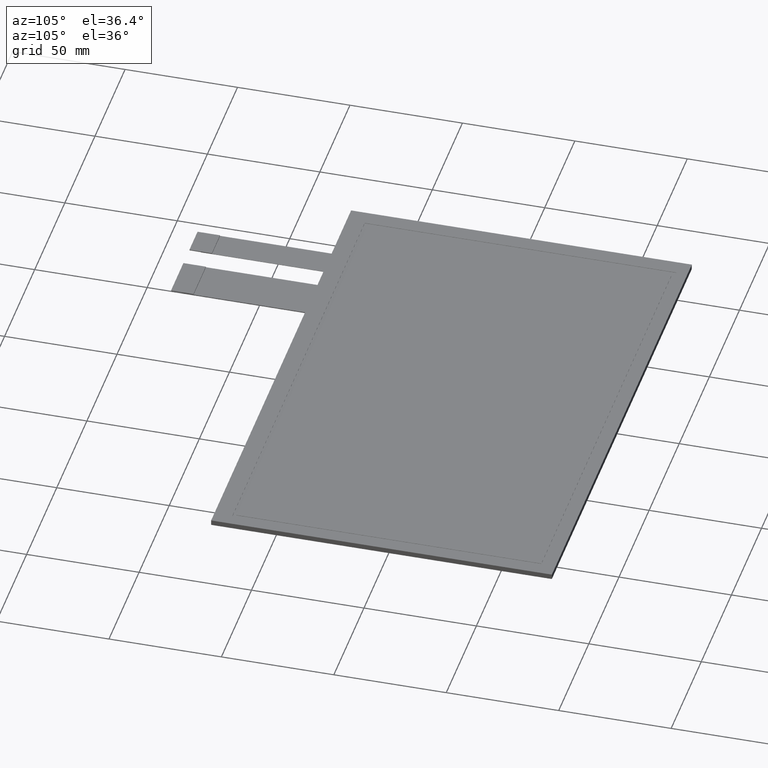
[diagram: clean part render]
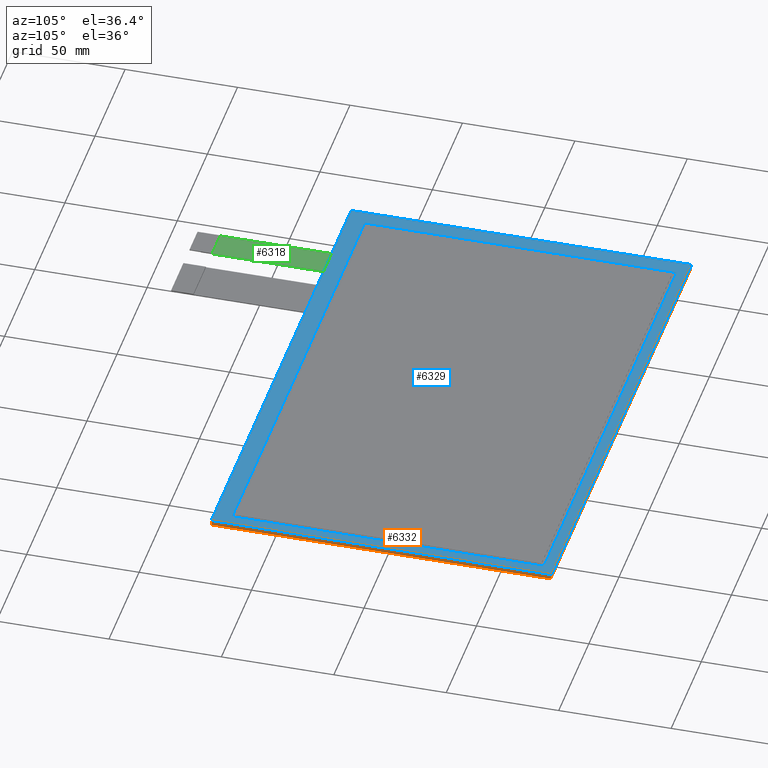
[diagram: same view with three faces highlighted in distinct colors, each labeled with its STEP entity id]
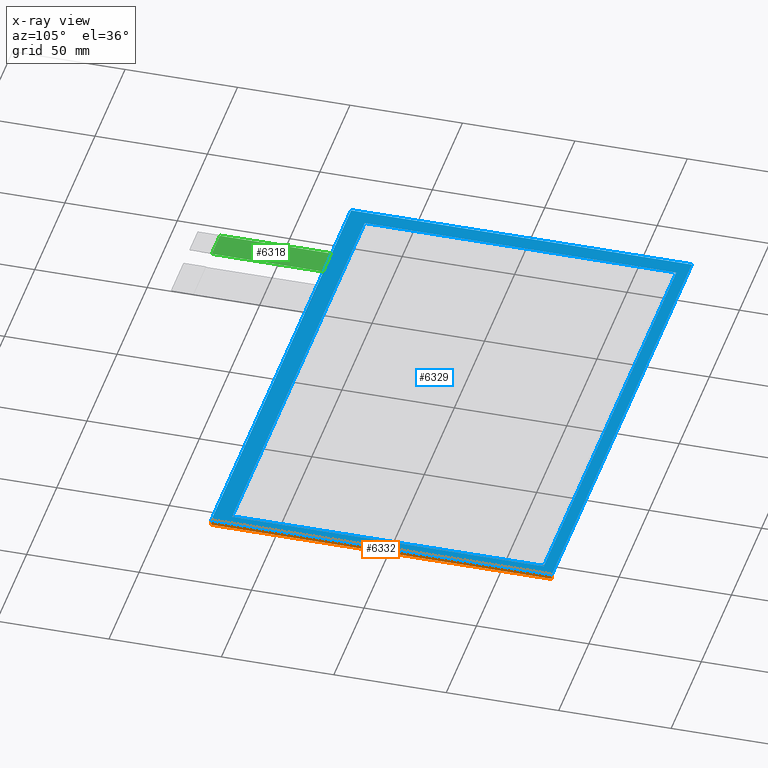
[diagram: x-ray of the same camera — body ghosted, the three highlighted faces saturated]
A machine part, auxiliary view with three faces highlighted in distinct colors.
The next image is the same camera in x-ray (body ghosted, the three faces saturated) — at least one of them is partly hidden behind the body in this view.
Their STEP definitions:

[orange] entity #6332 — the highlighted planar face has unit normal (1, 0, 0).
#394=PLANE('',#6662);
#696=FACE_OUTER_BOUND('',#1002,.T.);
#1002=EDGE_LOOP('',(#6014,#6015,#6016,#6017));
#1877=LINE('',#9932,#2757);
#1882=LINE('',#9942,#2762);
#1883=LINE('',#9945,#2763);
#1884=LINE('',#9946,#2764);
#2757=VECTOR('',#8147,10.);
#2762=VECTOR('',#8156,10.);
#2763=VECTOR('',#8159,10.);
#2764=VECTOR('',#8160,10.);
#3358=VERTEX_POINT('',#9925);
#3361=VERTEX_POINT('',#9930);
#3364=VERTEX_POINT('',#9940);
#3365=VERTEX_POINT('',#9944);
#4245=EDGE_CURVE('',#3361,#3358,#1877,.T.);
#4250=EDGE_CURVE('',#3361,#3364,#1882,.T.);
#4251=EDGE_CURVE('',#3365,#3364,#1883,.T.);
#4252=EDGE_CURVE('',#3358,#3365,#1884,.T.);
#6014=ORIENTED_EDGE('',*,*,#4245,.F.);
#6015=ORIENTED_EDGE('',*,*,#4250,.T.);
#6016=ORIENTED_EDGE('',*,*,#4251,.F.);
#6017=ORIENTED_EDGE('',*,*,#4252,.F.);
#6332=ADVANCED_FACE('',(#696),#394,.T.);
#6662=AXIS2_PLACEMENT_3D('',#9943,#8157,#8158);
#8147=DIRECTION('',(-1.17251276528069E-16,1.,0.));
#8156=DIRECTION('',(0.,0.,-1.));
#8157=DIRECTION('center_axis',(1.,1.17251276528069E-16,0.));
#8158=DIRECTION('ref_axis',(1.17251276528069E-16,-1.,0.));
#8159=DIRECTION('',(1.17251276528069E-16,-1.,0.));
#8160=DIRECTION('',(0.,0.,-1.));
#9925=CARTESIAN_POINT('',(115.02,74.19,0.));
#9930=CARTESIAN_POINT('',(115.02,-77.31,0.));
#9932=CARTESIAN_POINT('',(115.02,-77.31,0.));
#9940=CARTESIAN_POINT('',(115.02,-77.31,-2.35));
#9942=CARTESIAN_POINT('',(115.02,-77.31,0.));
#9943=CARTESIAN_POINT('Origin',(115.02,74.19,0.));
#9944=CARTESIAN_POINT('',(115.02,74.19,-2.35));
#9945=CARTESIAN_POINT('',(115.02,-77.31,-2.35));
#9946=CARTESIAN_POINT('',(115.02,74.19,0.));

[blue] entity #6329 — the highlighted planar face has unit normal (0, 0, 1).
#97=FACE_BOUND('',#997,.T.);
#391=PLANE('',#6659);
#693=FACE_OUTER_BOUND('',#996,.T.);
#996=EDGE_LOOP('',(#5990,#5991,#5992,#5993));
#997=EDGE_LOOP('',(#5994,#5995,#5996,#5997));
#1862=LINE('',#9902,#2742);
#1866=LINE('',#9910,#2746);
#1869=LINE('',#9916,#2749);
#1872=LINE('',#9921,#2752);
#1874=LINE('',#9927,#2754);
#1875=LINE('',#9929,#2755);
#1876=LINE('',#9931,#2756);
#1877=LINE('',#9932,#2757);
#2742=VECTOR('',#8122,10.);
#2746=VECTOR('',#8128,10.);
#2749=VECTOR('',#8133,10.);
#2752=VECTOR('',#8138,10.);
#2754=VECTOR('',#8144,10.);
#2755=VECTOR('',#8145,10.);
#2756=VECTOR('',#8146,10.);
#2757=VECTOR('',#8147,10.);
#3350=VERTEX_POINT('',#9900);
#3351=VERTEX_POINT('',#9901);
#3354=VERTEX_POINT('',#9909);
#3356=VERTEX_POINT('',#9915);
#3358=VERTEX_POINT('',#9925);
#3359=VERTEX_POINT('',#9926);
#3360=VERTEX_POINT('',#9928);
#3361=VERTEX_POINT('',#9930);
#4230=EDGE_CURVE('',#3350,#3351,#1862,.T.);
#4234=EDGE_CURVE('',#3354,#3350,#1866,.T.);
#4237=EDGE_CURVE('',#3356,#3354,#1869,.T.);
#4240=EDGE_CURVE('',#3351,#3356,#1872,.T.);
#4242=EDGE_CURVE('',#3358,#3359,#1874,.T.);
#4243=EDGE_CURVE('',#3359,#3360,#1875,.T.);
#4244=EDGE_CURVE('',#3360,#3361,#1876,.T.);
#4245=EDGE_CURVE('',#3361,#3358,#1877,.T.);
#5990=ORIENTED_EDGE('',*,*,#4242,.T.);
#5991=ORIENTED_EDGE('',*,*,#4243,.T.);
#5992=ORIENTED_EDGE('',*,*,#4244,.T.);
#5993=ORIENTED_EDGE('',*,*,#4245,.T.);
#5994=ORIENTED_EDGE('',*,*,#4230,.T.);
#5995=ORIENTED_EDGE('',*,*,#4240,.T.);
#5996=ORIENTED_EDGE('',*,*,#4237,.T.);
#5997=ORIENTED_EDGE('',*,*,#4234,.T.);
#6329=ADVANCED_FACE('',(#693,#97),#391,.T.);
#6659=AXIS2_PLACEMENT_3D('',#9924,#8142,#8143);
#8122=DIRECTION('',(-2.56328548254004E-16,1.,0.));
#8128=DIRECTION('',(-1.,-1.21115239050017E-16,0.));
#8133=DIRECTION('',(0.,-1.,0.));
#8138=DIRECTION('',(1.,0.,0.));
#8142=DIRECTION('center_axis',(0.,0.,1.));
#8143=DIRECTION('ref_axis',(1.,0.,0.));
#8144=DIRECTION('',(-1.,0.,0.));
#8145=DIRECTION('',(2.34502553056139E-16,-1.,0.));
#8146=DIRECTION('',(1.,1.14702335733981E-16,0.));
#8147=DIRECTION('',(-1.17251276528069E-16,1.,0.));
#9900=CARTESIAN_POINT('',(-109.98,-69.31,0.));
#9901=CARTESIAN_POINT('',(-109.98,69.29,0.));
#9902=CARTESIAN_POINT('',(-109.98,-35.435,0.));
#9909=CARTESIAN_POINT('',(110.02,-69.31,0.));
#9910=CARTESIAN_POINT('',(54.445,-69.31,0.));
#9915=CARTESIAN_POINT('',(110.02,69.29,0.));
#9916=CARTESIAN_POINT('',(110.02,33.865,0.));
#9921=CARTESIAN_POINT('',(-55.555,69.29,0.));
#9924=CARTESIAN_POINT('Origin',(-1.13000000000001,-1.56,0.));
#9925=CARTESIAN_POINT('',(115.02,74.19,0.));
#9926=CARTESIAN_POINT('',(-117.28,74.19,0.));
#9927=CARTESIAN_POINT('',(115.02,74.19,0.));
#9928=CARTESIAN_POINT('',(-117.28,-77.31,0.));
#9929=CARTESIAN_POINT('',(-117.28,74.19,0.));
#9930=CARTESIAN_POINT('',(115.02,-77.31,0.));
#9931=CARTESIAN_POINT('',(-117.28,-77.31,0.));
#9932=CARTESIAN_POINT('',(115.02,-77.31,0.));

[green] entity #6318 — the highlighted planar face has unit normal (0, 0, 1).
#380=PLANE('',#6648);
#682=FACE_OUTER_BOUND('',#984,.T.);
#984=EDGE_LOOP('',(#5942,#5943,#5944,#5945));
#1504=LINE('',#9185,#2384);
#1836=LINE('',#9849,#2716);
#1847=LINE('',#9870,#2727);
#1848=LINE('',#9872,#2728);
#2384=VECTOR('',#7412,10.);
#2716=VECTOR('',#8072,10.);
#2727=VECTOR('',#8093,10.);
#2728=VECTOR('',#8096,10.);
#3167=VERTEX_POINT('',#9182);
#3168=VERTEX_POINT('',#9184);
#3336=VERTEX_POINT('',#9848);
#3341=VERTEX_POINT('',#9868);
#3872=EDGE_CURVE('',#3168,#3167,#1504,.T.);
#4204=EDGE_CURVE('',#3167,#3336,#1836,.T.);
#4215=EDGE_CURVE('',#3336,#3341,#1847,.T.);
#4216=EDGE_CURVE('',#3168,#3341,#1848,.T.);
#5942=ORIENTED_EDGE('',*,*,#4204,.T.);
#5943=ORIENTED_EDGE('',*,*,#4215,.T.);
#5944=ORIENTED_EDGE('',*,*,#4216,.F.);
#5945=ORIENTED_EDGE('',*,*,#3872,.T.);
#6318=ADVANCED_FACE('',(#682),#380,.T.);
#6648=AXIS2_PLACEMENT_3D('',#9871,#8094,#8095);
#7412=DIRECTION('',(2.96059473233375E-16,-1.,0.));
#8072=DIRECTION('',(1.,0.,0.));
#8093=DIRECTION('',(-1.48029736616688E-16,1.,0.));
#8094=DIRECTION('center_axis',(0.,0.,1.));
#8095=DIRECTION('ref_axis',(1.,0.,0.));
#8096=DIRECTION('',(1.,1.14702335733981E-16,0.));
#9182=CARTESIAN_POINT('',(-86.38,-127.31,-1.1));
#9184=CARTESIAN_POINT('',(-86.38,-77.31,-1.1));
#9185=CARTESIAN_POINT('',(-86.38,-77.31,-1.1));
#9848=CARTESIAN_POINT('',(-72.88,-127.31,-1.1));
#9849=CARTESIAN_POINT('',(-76.255,-127.31,-1.1));
#9868=CARTESIAN_POINT('',(-72.88,-77.31,-1.1));
#9870=CARTESIAN_POINT('',(-72.88,-137.31,-1.1));
#9871=CARTESIAN_POINT('Origin',(-79.63,-107.31,-1.1));
#9872=CARTESIAN_POINT('',(17.695,-77.31,-1.1));